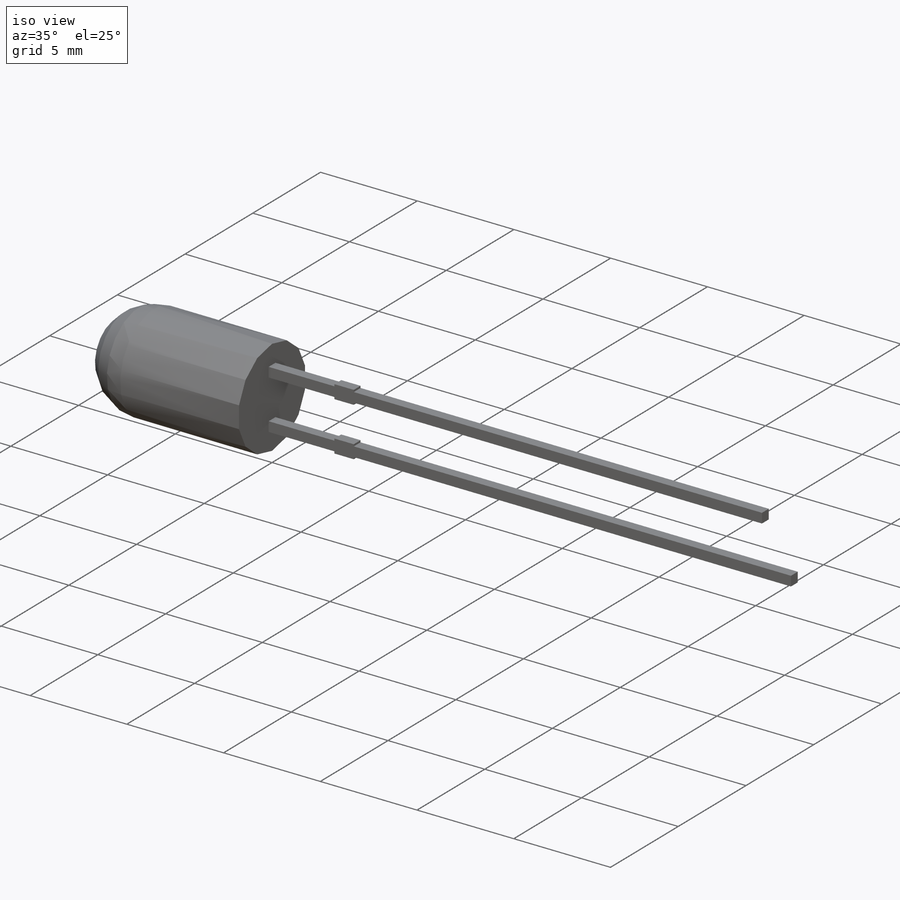
[diagram: iso view]
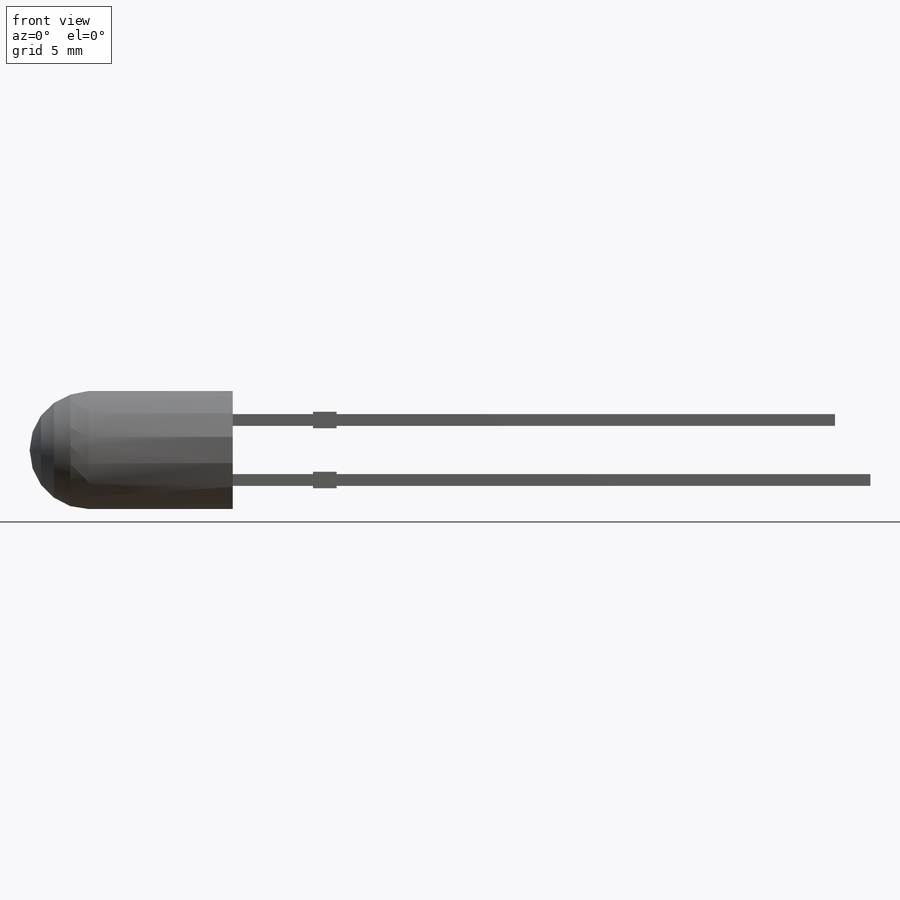
[diagram: front view]
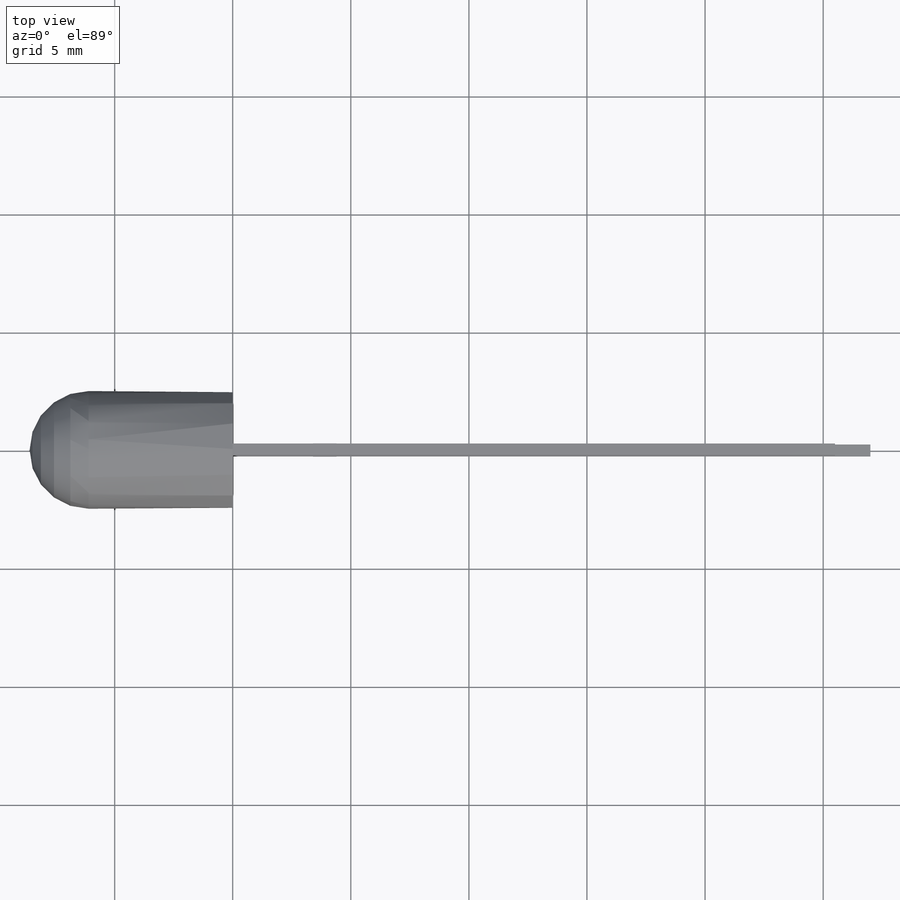
[diagram: top view]
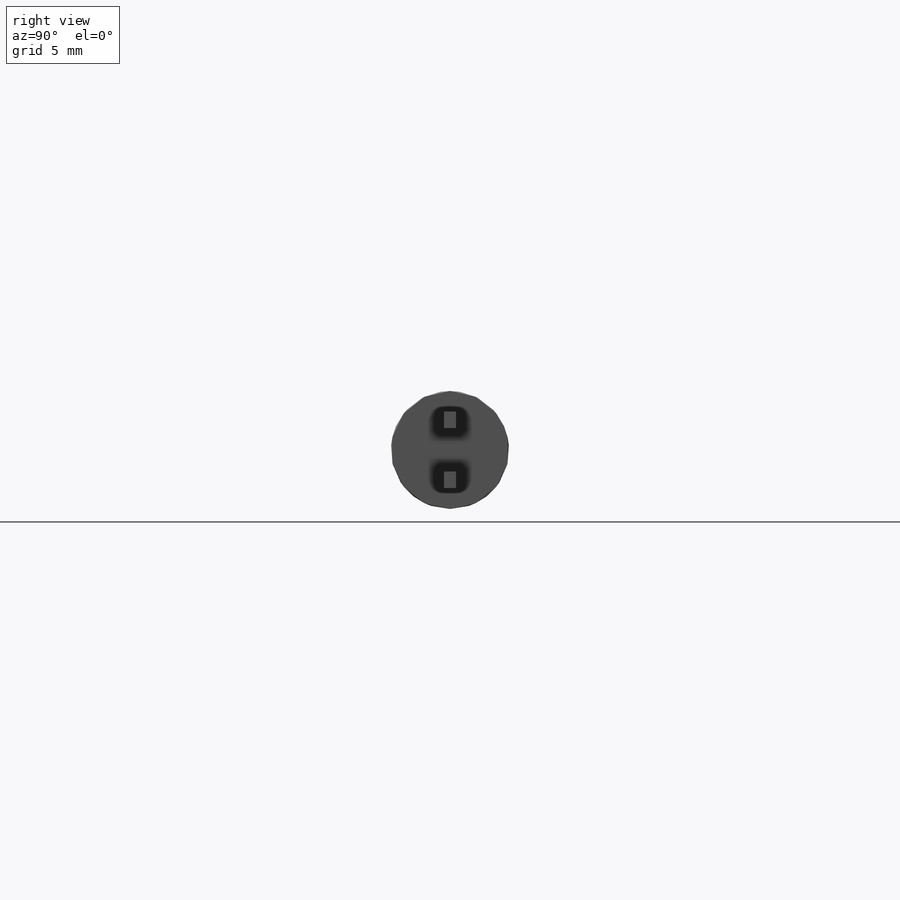
[diagram: right view]
SOLIDWORKS PART (.sldprt)
format: sldprt  version: not decoded by parser v0  size: 602,112 bytes
history: native  units: mm
features: sketch x3, material x1, extrude x1, revolve x1, cut_extrude x1 (+11 scaffold rows collapsed)
feature tree (18):
  scaffold x11  (default folders/planes/origin — collapsed)
  material  "Material <not specified>"
  sketch  "Sketch1"  dims[c1.D2=5.0mm c1.D1=5.0mm c2.D2=7.0mm c2.D3=2.54mm c2.D4=27.0mm c2.D5=1.5mm c2.D6=0.5mm c2.D7=0.7mm c2.D8=1.0mm c2.D9=5.0mm c2.D1=8.6mm c3.D9=12.0mm]
  extrude  "Extrude2"  Depth=0.5mm
  revolve  "Revolve1"  [1 undecoded]
  sketch  "Sketch1<6>"  dims[D1=360.0deg]
  sketch  "Sketch2"  dims[D1=~3.924814mm]
  cut_extrude  "Cut-Extrude1"  Depth=0.01mm
decode coverage: 5 of 6 modeling features carry decoded parameters
note: ~ marks probable driven/reference dimensions
note: 1 parameter value undecoded
note: suppression state not decoded; provenance and decode notes live in map.json
